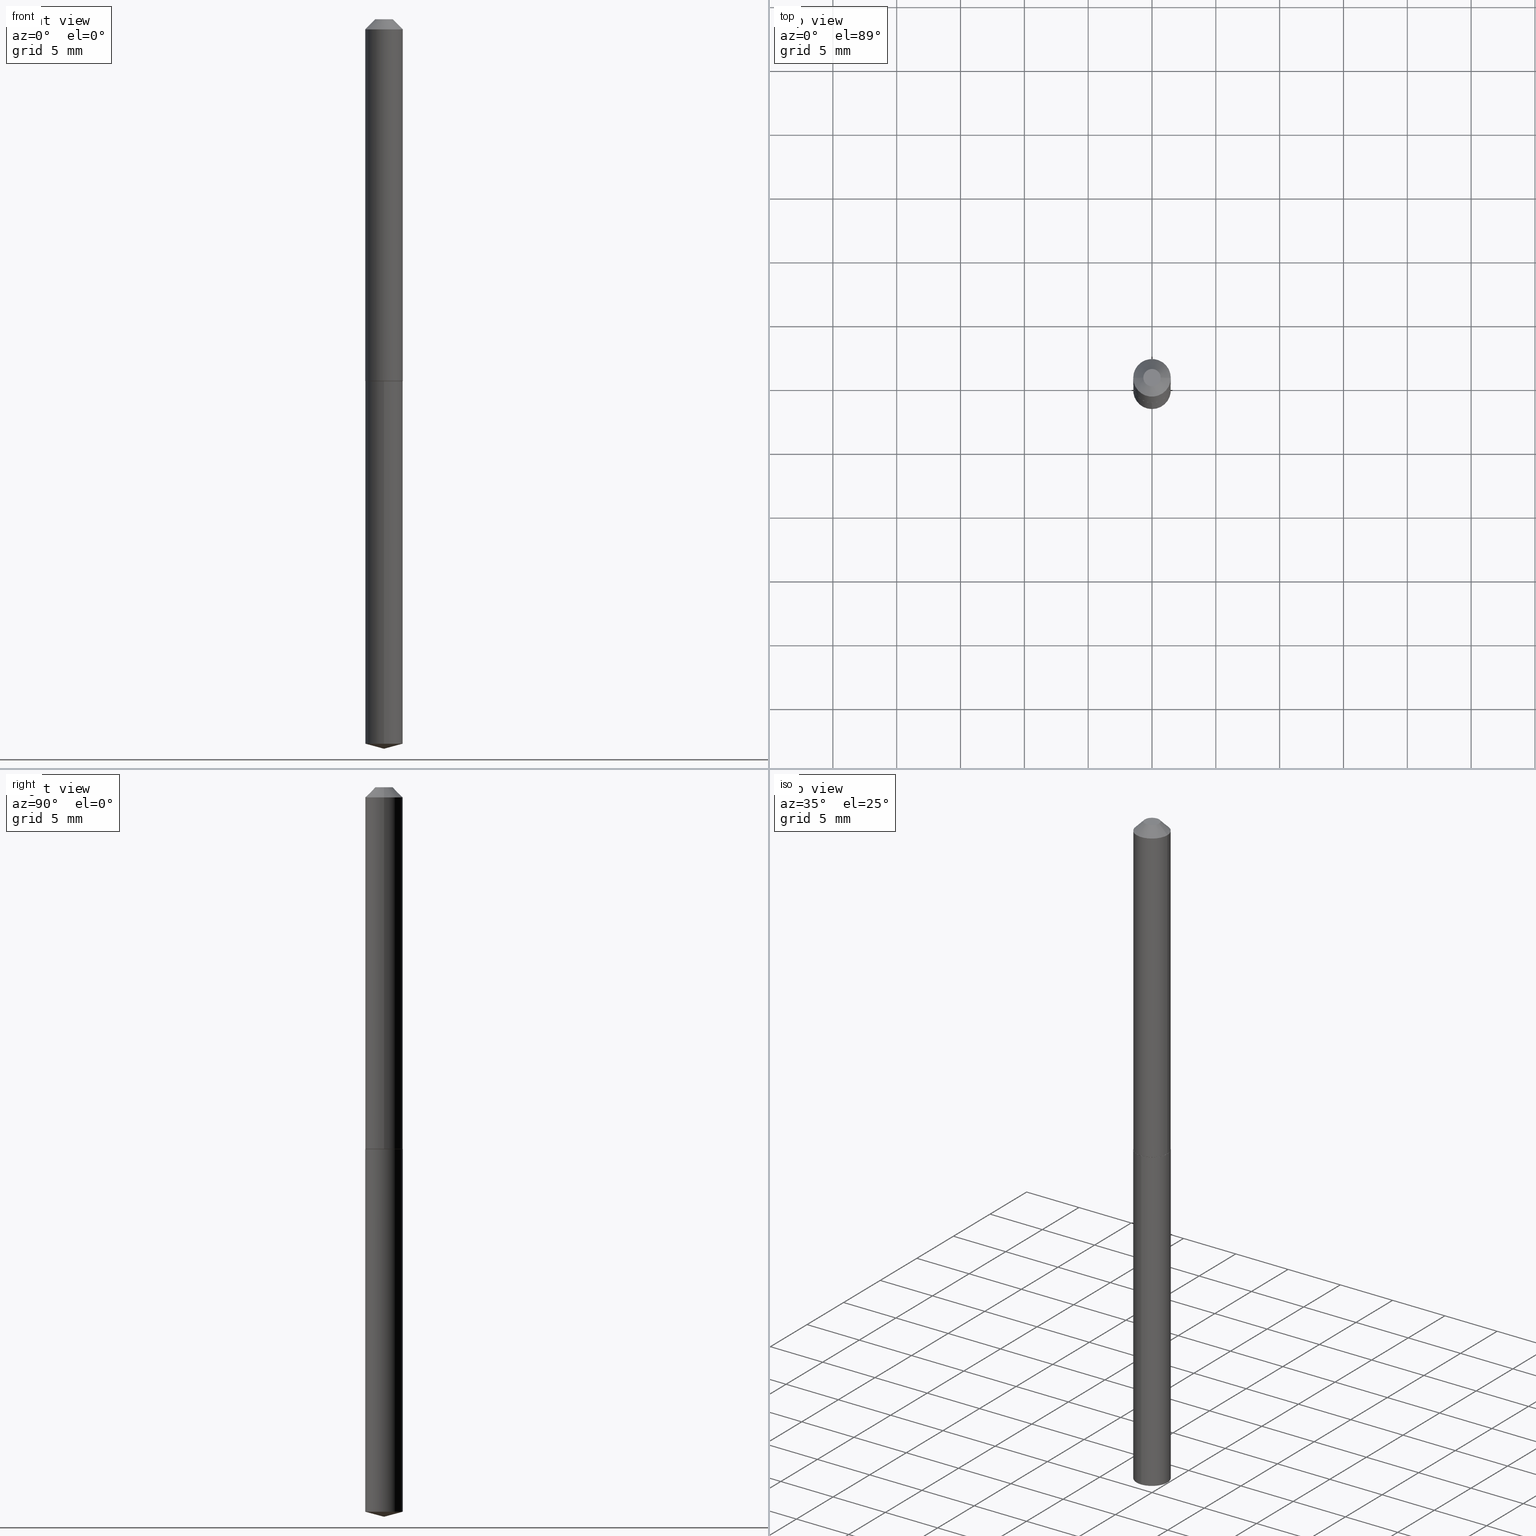
[diagram: canonical four-view strip — front | top / right | iso, engineering-drawing reading convention]
A machine part, canonical four-view strip (front | top / right | iso — engineering-drawing reading convention). The complete STEP part file that produces these views, byte-faithful:
ISO-10303-21;
HEADER;
FILE_DESCRIPTION (( 'STEP AP203' ),
    '1' );
FILE_NAME ('58016.STEP',
    '2024-04-23T00:14:53',
    ( '' ),
    ( '' ),
    'SwSTEP 2.0',
    'SolidWorks 2023',
    '' );
FILE_SCHEMA (( 'CONFIG_CONTROL_DESIGN' ));
ENDSEC;

DATA;
#1 = EDGE_LOOP ( 'NONE', ( #166, #285, #360, #257 ) ) ;
#2 = ORIENTED_EDGE ( 'NONE', *, *, #249, .T. ) ;
#3 = DIRECTION ( 'NONE',  ( -1.000000000000000000, 6.982962677686266711E-15, 0.000000000000000000 ) ) ;
#4 = EDGE_CURVE ( 'NONE', #196, #288, #218, .T. ) ;
#5 = CARTESIAN_POINT ( 'NONE',  ( 5.504240683751685970E-29, -7.853060736610304644E-15, -2.249999999999999556 ) ) ;
#6 = DIRECTION ( 'NONE',  ( 1.000000000000000000, -6.982962677686265922E-15, 0.000000000000000000 ) ) ;
#7 = AXIS2_PLACEMENT_3D ( 'NONE', #123, #229, #16 ) ;
#8 = LOCAL_TIME ( 20, 14, 53.00000000000000000, #151 ) ;
#9 = EDGE_LOOP ( 'NONE', ( #312, #223 ) ) ;
#10 = ADVANCED_FACE ( 'NONE', ( #233 ), #119, .T. ) ;
#11 =( NAMED_UNIT ( * ) SI_UNIT ( $, .STERADIAN. ) SOLID_ANGLE_UNIT ( ) );
#12 = FACE_OUTER_BOUND ( 'NONE', #174, .T. ) ;
#13 = LINE ( 'NONE', #145, #211 ) ;
#14 = ORIENTED_EDGE ( 'NONE', *, *, #99, .T. ) ;
#15 = ADVANCED_FACE ( 'NONE', ( #12 ), #328, .F. ) ;
#16 = DIRECTION ( 'NONE',  ( 1.000000000000000000, -6.982962677686265922E-15, 0.000000000000000000 ) ) ;
#17 =( LENGTH_UNIT ( ) NAMED_UNIT ( * ) SI_UNIT ( $, .METRE. ) );
#18 = VECTOR ( 'NONE', #354, 39.37007874015748143 ) ;
#19 = PRODUCT_RELATED_PRODUCT_CATEGORY ( 'detail', '', ( #113 ) ) ;
#20 =( CONVERSION_BASED_UNIT ( 'INCH', #276 ) LENGTH_UNIT ( ) NAMED_UNIT ( #206 ) );
#21 = CARTESIAN_POINT ( 'NONE',  ( 5.504257523242681981E-29, -7.853060736610304644E-15, -2.249999999999999556 ) ) ;
#22 = AXIS2_PLACEMENT_3D ( 'NONE', #279, #30, #136 ) ;
#23 = AXIS2_PLACEMENT_3D ( 'NONE', #192, #314, #37 ) ;
#24 = PERSON_AND_ORGANIZATION ( #165, #358 ) ;
#25 = DATE_TIME_ROLE ( 'classification_date' ) ;
#26 = CC_DESIGN_PERSON_AND_ORGANIZATION_ASSIGNMENT ( #57, #355, ( #115 ) ) ;
#27 = DIRECTION ( 'NONE',  ( -1.000000000000000000, 6.982962677686266711E-15, 0.000000000000000000 ) ) ;
#28 = CARTESIAN_POINT ( 'NONE',  ( 4.121147867409127080E-16, 0.05799999999999219669, -2.234458946838995264 ) ) ;
#29 = VERTEX_POINT ( 'NONE', #347 ) ;
#30 = DIRECTION ( 'NONE',  ( -2.445468806185136597E-29, 3.491481338843145583E-15, 1.000000000000000000 ) ) ;
#31 = ORIENTED_EDGE ( 'NONE', *, *, #241, .T. ) ;
#32 = CONICAL_SURFACE ( 'NONE', #264, 146.9311341562581390, 1.308996938995752535 ) ;
#33 = DIRECTION ( 'NONE',  ( -2.445468806185136597E-29, 3.491481338843145583E-15, 1.000000000000000000 ) ) ;
#34 = ORIENTED_EDGE ( 'NONE', *, *, #334, .F. ) ;
#35 = EDGE_LOOP ( 'NONE', ( #321, #14, #247, #178 ) ) ;
#36 = CC_DESIGN_PERSON_AND_ORGANIZATION_ASSIGNMENT ( #176, #200, ( #72 ) ) ;
#37 = DIRECTION ( 'NONE',  ( 1.000000000000000000, -6.982962677686265922E-15, 4.876188278482911222E-29 ) ) ;
#38 = VECTOR ( 'NONE', #210, 39.37007874015748143 ) ;
#39 = DIRECTION ( 'NONE',  ( 1.000000000000000000, 0.000000000000000000, 0.000000000000000000 ) ) ;
#40 = EDGE_LOOP ( 'NONE', ( #74, #280, #163, #69 ) ) ;
#41 = COORDINATED_UNIVERSAL_TIME_OFFSET ( 5, 0, .BEHIND. ) ;
#42 = MECHANICAL_CONTEXT ( 'NONE', #369, 'mechanical' ) ;
#43 = ORIENTED_EDGE ( 'NONE', *, *, #380, .F. ) ;
#44 = AXIS2_PLACEMENT_3D ( 'NONE', #343, #292, #76 ) ;
#45 = CARTESIAN_POINT ( 'NONE',  ( -0.02675000000000000294, 2.413486475475311021E-16, 1.836970198706068971E-19 ) ) ;
#46 = CARTESIAN_POINT ( 'NONE',  ( 0.000000000000000000, 0.000000000000000000, 0.000000000000000000 ) ) ;
#47 = EDGE_CURVE ( 'NONE', #196, #29, #13, .T. ) ;
#48 = CARTESIAN_POINT ( 'NONE',  ( 2.729143187702612168E-29, -3.896493174148950582E-15, -1.115999999999999881 ) ) ;
#49 = APPROVAL ( #265, 'UNSPECIFIED' ) ;
#50 = UNCERTAINTY_MEASURE_WITH_UNIT (LENGTH_MEASURE( 1.000000000000000082E-05 ), #20, 'distance_accuracy_value', 'NONE');
#51 = SECURITY_CLASSIFICATION ( '', '', #381 ) ;
#52 = DIRECTION ( 'NONE',  ( -6.982962677686265922E-15, -1.000000000000000000, 2.355041373848502747E-15 ) ) ;
#53 = DATE_AND_TIME ( #379, #81 ) ;
#54 = DATE_AND_TIME ( #90, #326 ) ;
#55 = LINE ( 'NONE', #21, #352 ) ;
#56 = CARTESIAN_POINT ( 'NONE',  ( 4.121147867409129052E-16, 0.05799999999999611022, -1.116000000000000103 ) ) ;
#57 = PERSON_AND_ORGANIZATION ( #165, #358 ) ;
#58 = CARTESIAN_POINT ( 'NONE',  ( 5.465261960279172844E-29, -7.800193636785316454E-15, -2.234458946838994819 ) ) ;
#59 = AXIS2_PLACEMENT_3D ( 'NONE', #307, #190, #27 ) ;
#60 = AXIS2_PLACEMENT_3D ( 'NONE', #104, #258, #332 ) ;
#61 = EDGE_CURVE ( 'NONE', #221, #341, #364, .T. ) ;
#62 = FACE_OUTER_BOUND ( 'NONE', #1, .T. ) ;
#63 = CARTESIAN_POINT ( 'NONE',  ( -4.050118353057761076E-16, -0.05800000000000389566, -1.115999999999999881 ) ) ;
#64 = ORIENTED_EDGE ( 'NONE', *, *, #4, .F. ) ;
#65 = DIRECTION ( 'NONE',  ( 1.000000000000000000, -6.982962677686266711E-15, 4.876176775795935793E-29 ) ) ;
#66 = CARTESIAN_POINT ( 'NONE',  ( 7.642090019328602662E-31, -1.091087918388490267E-16, -0.03125000000000020817 ) ) ;
#67 = ADVANCED_FACE ( 'NONE', ( #226 ), #296, .F. ) ;
#68 = CARTESIAN_POINT ( 'NONE',  ( 2.729143187702612168E-29, -3.896493174148950582E-15, -1.115999999999999881 ) ) ;
#69 = ORIENTED_EDGE ( 'NONE', *, *, #182, .F. ) ;
#70 = FACE_OUTER_BOUND ( 'NONE', #112, .T. ) ;
#71 = EDGE_LOOP ( 'NONE', ( #350, #31, #64, #193 ) ) ;
#72 = PRODUCT_DEFINITION ( 'UNKNOWN', '', #115, #269 ) ;
#73 = CONICAL_SURFACE ( 'NONE', #376, 0.05800000000000014172, 0.7853981633975507526 ) ;
#74 = ORIENTED_EDGE ( 'NONE', *, *, #234, .F. ) ;
#75 = PERSON_AND_ORGANIZATION ( #165, #358 ) ;
#76 = DIRECTION ( 'NONE',  ( -6.982962677686265922E-15, -1.000000000000000000, 2.355041373848502747E-15 ) ) ;
#77 = ADVANCED_FACE ( 'NONE', ( #227 ), #32, .T. ) ;
#78 = APPROVAL_DATE_TIME ( #118, #49 ) ;
#79 = CARTESIAN_POINT ( 'NONE',  ( -9.080889245172304310E-28, 1.295569506819713750E-13, 37.12007874015748143 ) ) ;
#80 = CONICAL_SURFACE ( 'NONE', #59, 0.05800000000000000294, 0.7853981633974449483 ) ;
#81 = LOCAL_TIME ( 20, 14, 53.00000000000000000, #96 ) ;
#82 = CARTESIAN_POINT ( 'NONE',  ( 5.465261960279172844E-29, -7.800193636785316454E-15, -2.234458946838994819 ) ) ;
#83 = DIRECTION ( 'NONE',  ( -2.445468806185136597E-29, 3.491481338843145583E-15, 1.000000000000000000 ) ) ;
#84 = ADVANCED_FACE ( 'NONE', ( #324 ), #152, .T. ) ;
#85 = MANIFOLD_SOLID_BREP ( 'Body-Move/Copy2[2]', #127 ) ;
#86 = CIRCLE ( 'NONE', #348, 0.05750000000000014128 ) ;
#87 = SHAPE_DEFINITION_REPRESENTATION ( #146, #108 ) ;
#88 = CARTESIAN_POINT ( 'NONE',  ( 0.05750000000000014128, -4.298013528115911391E-15, -1.115999999999999881 ) ) ;
#89 = CARTESIAN_POINT ( 'NONE',  ( 2.729143187702612168E-29, -3.896493174148949793E-15, -1.115999999999999881 ) ) ;
#90 = CALENDAR_DATE ( 2024, 22, 4 ) ;
#91 = CARTESIAN_POINT ( 'NONE',  ( 0.05800000000000014172, -4.299759268785332895E-15, -1.115499999999999936 ) ) ;
#92 = ORIENTED_EDGE ( 'NONE', *, *, #228, .F. ) ;
#93 = FACE_OUTER_BOUND ( 'NONE', #368, .T. ) ;
#94 =( NAMED_UNIT ( * ) PLANE_ANGLE_UNIT ( ) SI_UNIT ( $, .RADIAN. ) );
#95 = AXIS2_PLACEMENT_3D ( 'NONE', #361, #214, #65 ) ;
#96 = COORDINATED_UNIVERSAL_TIME_OFFSET ( 5, 0, .BEHIND. ) ;
#97 = DIRECTION ( 'NONE',  ( -2.446329192778527285E-29, 3.490249216271246596E-15, 1.000000000000000000 ) ) ;
#98 = ORIENTED_EDGE ( 'NONE', *, *, #286, .F. ) ;
#99 = EDGE_CURVE ( 'NONE', #221, #109, #378, .T. ) ;
#100 = CARTESIAN_POINT ( 'NONE',  ( -4.492253318864008525E-48, 6.413747168845487133E-34, 1.836970198721037299E-19 ) ) ;
#101 = ORIENTED_EDGE ( 'NONE', *, *, #380, .T. ) ;
#102 = FACE_OUTER_BOUND ( 'NONE', #143, .T. ) ;
#103 = AXIS2_PLACEMENT_3D ( 'NONE', #46, #177, #238 ) ;
#104 = CARTESIAN_POINT ( 'NONE',  ( 2.729143187702612168E-29, -3.896493174148949793E-15, -1.115999999999999881 ) ) ;
#105 = APPROVAL_PERSON_ORGANIZATION ( #268, #309, #120 ) ;
#106 = CARTESIAN_POINT ( 'NONE',  ( 0.02675000000000000294, -3.452679985749932326E-16, 1.836970198739634078E-19 ) ) ;
#107 = ORIENTED_EDGE ( 'NONE', *, *, #331, .T. ) ;
#108 = ADVANCED_BREP_SHAPE_REPRESENTATION ( '58016', ( #344, #85, #197 ), #382 ) ;
#109 = VERTEX_POINT ( 'NONE', #56 ) ;
#110 = ADVANCED_FACE ( 'NONE', ( #156 ), #325, .T. ) ;
#111 = CARTESIAN_POINT ( 'NONE',  ( 2.727920453299519367E-29, -3.894747433479528290E-15, -1.115499999999999936 ) ) ;
#112 = EDGE_LOOP ( 'NONE', ( #271, #339 ) ) ;
#113 = PRODUCT ( '58016', '58016', '', ( #42 ) ) ;
#114 = AXIS2_PLACEMENT_3D ( 'NONE', #125, #129, #52 ) ;
#115 = PRODUCT_DEFINITION_FORMATION_WITH_SPECIFIED_SOURCE ( 'ANY', '', #113, .NOT_KNOWN. ) ;
#116 = DIRECTION ( 'NONE',  ( -6.982962677686265922E-15, -1.000000000000000000, 4.710082747697005495E-15 ) ) ;
#117 = EDGE_CURVE ( 'NONE', #390, #150, #274, .T. ) ;
#118 = DATE_AND_TIME ( #142, #301 ) ;
#119 = CYLINDRICAL_SURFACE ( 'NONE', #44, 0.05800000000000000294 ) ;
#120 = APPROVAL_ROLE ( '' ) ;
#121 = DIRECTION ( 'NONE',  ( 1.000000000000000000, -6.982962677686265922E-15, 4.876176775795935793E-29 ) ) ;
#122 = VECTOR ( 'NONE', #183, 39.37007874015748143 ) ;
#123 = CARTESIAN_POINT ( 'NONE',  ( 2.727920453299519367E-29, -3.894747433479528290E-15, -1.115499999999999936 ) ) ;
#124 = CARTESIAN_POINT ( 'NONE',  ( 4.121147867408853444E-16, 0.05799999999999611022, -1.116000000000000103 ) ) ;
#125 = CARTESIAN_POINT ( 'NONE',  ( 2.729143187702612168E-29, -3.896493174148950582E-15, -1.115999999999999881 ) ) ;
#126 = LINE ( 'NONE', #164, #212 ) ;
#127 = CLOSED_SHELL ( 'NONE', ( #130, #84, #110, #15, #366, #370, #375, #133 ) ) ;
#128 = CIRCLE ( 'NONE', #311, 0.05800000000000000294 ) ;
#129 = DIRECTION ( 'NONE',  ( -2.446329192778527285E-29, 3.490249216271246596E-15, 1.000000000000000000 ) ) ;
#130 = ADVANCED_FACE ( 'NONE', ( #159 ), #80, .T. ) ;
#131 = DIRECTION ( 'NONE',  ( 0.7071067811865451302, -7.319954787623248157E-15, -0.7071067811865499042 ) ) ;
#132 = DIRECTION ( 'NONE',  ( -2.445468806185136597E-29, 3.491481338843145583E-15, 1.000000000000000000 ) ) ;
#133 = ADVANCED_FACE ( 'NONE', ( #70 ), #220, .F. ) ;
#134 = DIRECTION ( 'NONE',  ( -2.446329192778527285E-29, 3.490249216271246596E-15, 1.000000000000000000 ) ) ;
#135 = VERTEX_POINT ( 'NONE', #5 ) ;
#136 = DIRECTION ( 'NONE',  ( 1.000000000000000000, -6.982962677686265922E-15, 0.000000000000000000 ) ) ;
#137 = ORIENTED_EDGE ( 'NONE', *, *, #61, .F. ) ;
#138 = CARTESIAN_POINT ( 'NONE',  ( -9.080889245172304310E-28, 1.295569506819713750E-13, 37.12007874015748143 ) ) ;
#139 = ORIENTED_EDGE ( 'NONE', *, *, #322, .F. ) ;
#140 = AXIS2_PLACEMENT_3D ( 'NONE', #66, #33, #189 ) ;
#141 = ADVANCED_FACE ( 'NONE', ( #102 ), #203, .T. ) ;
#142 = CALENDAR_DATE ( 2024, 22, 4 ) ;
#143 = EDGE_LOOP ( 'NONE', ( #188, #107, #137 ) ) ;
#144 = APPLICATION_PROTOCOL_DEFINITION ( 'international standard', 'config_control_design', 1994, #338 ) ;
#145 = CARTESIAN_POINT ( 'NONE',  ( 0.05800000000000007233, -4.050118353058039642E-16, 2.828182529961646347E-30 ) ) ;
#146 = PRODUCT_DEFINITION_SHAPE ( 'NONE', 'NONE',  #72 ) ;
#147 = DIRECTION ( 'NONE',  ( 0.000000000000000000, 0.000000000000000000, 1.000000000000000000 ) ) ;
#148 = DIRECTION ( 'NONE',  ( 2.446329192778526724E-29, -3.490249216271246596E-15, -1.000000000000000000 ) ) ;
#149 = DATE_AND_TIME ( #293, #388 ) ;
#150 = VERTEX_POINT ( 'NONE', #106 ) ;
#151 = COORDINATED_UNIVERSAL_TIME_OFFSET ( 5, 0, .BEHIND. ) ;
#152 = CYLINDRICAL_SURFACE ( 'NONE', #103, 0.05800000000000007233 ) ;
#153 = AXIS2_PLACEMENT_3D ( 'NONE', #248, #167, #3 ) ;
#154 = DIRECTION ( 'NONE',  ( -6.982962677686265922E-15, -1.000000000000000000, 2.355041373848502747E-15 ) ) ;
#155 = DIRECTION ( 'NONE',  ( 0.7071067811866199593, -2.468850131083015945E-15, 0.7071067811864750752 ) ) ;
#156 = FACE_OUTER_BOUND ( 'NONE', #71, .T. ) ;
#157 = AXIS2_PLACEMENT_3D ( 'NONE', #242, #132, #239 ) ;
#158 = PERSON_AND_ORGANIZATION ( #165, #358 ) ;
#159 = FACE_OUTER_BOUND ( 'NONE', #184, .T. ) ;
#160 = ORIENTED_EDGE ( 'NONE', *, *, #234, .T. ) ;
#161 = AXIS2_PLACEMENT_3D ( 'NONE', #100, #259, #362 ) ;
#162 = AXIS2_PLACEMENT_3D ( 'NONE', #58, #97, #215 ) ;
#163 = ORIENTED_EDGE ( 'NONE', *, *, #47, .T. ) ;
#164 = CARTESIAN_POINT ( 'NONE',  ( -0.05800000000000000294, 2.959030434669544691E-16, -0.03125000000000020817 ) ) ;
#165 = PERSON ( 'UNSPECIFIED', 'UNSPECIFIED', 'UNSPECIFIED', ('UNSPECIFIED'), ('UNSPECIFIED'), ('UNSPECIFIED') ) ;
#166 = ORIENTED_EDGE ( 'NONE', *, *, #316, .F. ) ;
#167 = DIRECTION ( 'NONE',  ( 2.445468806185136597E-29, -3.491481338843145583E-15, -1.000000000000000000 ) ) ;
#168 = DIRECTION ( 'NONE',  ( -1.000000000000000000, 6.982962677686265922E-15, -4.876176775795935793E-29 ) ) ;
#169 = APPROVAL ( #205, 'UNSPECIFIED' ) ;
#170 = EDGE_LOOP ( 'NONE', ( #291, #101, #273, #340 ) ) ;
#171 = VERTEX_POINT ( 'NONE', #323 ) ;
#172 = EDGE_CURVE ( 'NONE', #288, #196, #317, .T. ) ;
#173 = ORIENTED_EDGE ( 'NONE', *, *, #61, .T. ) ;
#174 = EDGE_LOOP ( 'NONE', ( #139, #43 ) ) ;
#175 = VECTOR ( 'NONE', #246, 39.37007874015748143 ) ;
#176 = PERSON_AND_ORGANIZATION ( #165, #358 ) ;
#177 = DIRECTION ( 'NONE',  ( -2.445468806185136597E-29, 3.491481338843145583E-15, 1.000000000000000000 ) ) ;
#178 = ORIENTED_EDGE ( 'NONE', *, *, #198, .F. ) ;
#179 = EDGE_CURVE ( 'NONE', #341, #221, #297, .T. ) ;
#180 = APPROVAL_PERSON_ORGANIZATION ( #75, #49, #262 ) ;
#181 = CARTESIAN_POINT ( 'NONE',  ( 5.502320300875237439E-29, -7.855810834190783324E-15, -2.249999999999999556 ) ) ;
#182 = EDGE_CURVE ( 'NONE', #351, #29, #219, .T. ) ;
#183 = DIRECTION ( 'NONE',  ( -0.7071067811866199593, 7.493145998870616062E-15, 0.7071067811864750752 ) ) ;
#184 = EDGE_LOOP ( 'NONE', ( #98, #217, #2, #92 ) ) ;
#185 = VECTOR ( 'NONE', #155, 39.37007874015748143 ) ;
#186 = FACE_OUTER_BOUND ( 'NONE', #170, .T. ) ;
#187 = CARTESIAN_POINT ( 'NONE',  ( -0.05750000000000014128, -3.485281873912780623E-15, -1.115999999999999881 ) ) ;
#188 = ORIENTED_EDGE ( 'NONE', *, *, #275, .F. ) ;
#189 = DIRECTION ( 'NONE',  ( 1.000000000000000000, -6.982962677686266711E-15, 0.000000000000000000 ) ) ;
#190 = DIRECTION ( 'NONE',  ( 2.445468806185136597E-29, -3.491481338843145583E-15, -1.000000000000000000 ) ) ;
#191 = CIRCLE ( 'NONE', #23, 0.02675000000000000294 ) ;
#192 = CARTESIAN_POINT ( 'NONE',  ( -4.492253318864008525E-48, 6.413747168845487133E-34, 1.836970198721037299E-19 ) ) ;
#193 = ORIENTED_EDGE ( 'NONE', *, *, #195, .F. ) ;
#194 = ORIENTED_EDGE ( 'NONE', *, *, #331, .F. ) ;
#195 = EDGE_CURVE ( 'NONE', #251, #196, #356, .T. ) ;
#196 = VERTEX_POINT ( 'NONE', #335 ) ;
#197 = AXIS2_PLACEMENT_3D ( 'NONE', #318, #147, #39 ) ;
#198 = EDGE_CURVE ( 'NONE', #341, #171, #306, .T. ) ;
#199 = APPLICATION_PROTOCOL_DEFINITION ( 'international standard', 'config_control_design', 1994, #369 ) ;
#200 = PERSON_AND_ORGANIZATION_ROLE ( 'creator' ) ;
#201 = DIRECTION ( 'NONE',  ( -2.446329192778527285E-29, 3.490249216271246596E-15, 1.000000000000000000 ) ) ;
#202 = AXIS2_PLACEMENT_3D ( 'NONE', #48, #148, #266 ) ;
#203 = CONICAL_SURFACE ( 'NONE', #290, 146.9311341562581390, 1.308996938995752535 ) ;
#204 = DIRECTION ( 'NONE',  ( -2.446329192778527285E-29, 3.490249216271246596E-15, 1.000000000000000000 ) ) ;
#205 = APPROVAL_STATUS ( 'not_yet_approved' ) ;
#206 = DIMENSIONAL_EXPONENTS ( 1.000000000000000000, 0.000000000000000000, 0.000000000000000000, 0.000000000000000000, 0.000000000000000000, 0.000000000000000000, 0.000000000000000000 ) ;
#207 = PERSON_AND_ORGANIZATION_ROLE ( 'design_supplier' ) ;
#208 = VECTOR ( 'NONE', #235, 39.37007874015748854 ) ;
#209 = CC_DESIGN_DATE_AND_TIME_ASSIGNMENT ( #149, #327, ( #72 ) ) ;
#210 = DIRECTION ( 'NONE',  ( -2.446329192778527285E-29, 3.490249216271246596E-15, 1.000000000000000000 ) ) ;
#211 = VECTOR ( 'NONE', #263, 39.37007874015748143 ) ;
#212 = VECTOR ( 'NONE', #308, 39.37007874015748143 ) ;
#213 = VERTEX_POINT ( 'NONE', #187 ) ;
#214 = DIRECTION ( 'NONE',  ( -2.445468806185136597E-29, 3.491481338843145583E-15, 1.000000000000000000 ) ) ;
#215 = DIRECTION ( 'NONE',  ( -6.982962677686265922E-15, -1.000000000000000000, 4.710082747697005495E-15 ) ) ;
#216 = DIRECTION ( 'NONE',  ( 2.438088387897960049E-29, -3.491481338843145188E-15, -1.000000000000000000 ) ) ;
#217 = ORIENTED_EDGE ( 'NONE', *, *, #316, .T. ) ;
#218 = CIRCLE ( 'NONE', #7, 0.05800000000000014172 ) ;
#219 = CIRCLE ( 'NONE', #157, 0.05800000000000000294 ) ;
#220 = PLANE ( 'NONE',  #255 ) ;
#221 = VERTEX_POINT ( 'NONE', #28 ) ;
#222 = APPROVAL_DATE_TIME ( #232, #309 ) ;
#223 = ORIENTED_EDGE ( 'NONE', *, *, #334, .T. ) ;
#224 = AXIS2_PLACEMENT_3D ( 'NONE', #345, #346, #121 ) ;
#225 = CC_DESIGN_APPROVAL ( #309, ( #115 ) ) ;
#226 = FACE_OUTER_BOUND ( 'NONE', #9, .T. ) ;
#227 = FACE_OUTER_BOUND ( 'NONE', #283, .T. ) ;
#228 = EDGE_CURVE ( 'NONE', #390, #351, #126, .T. ) ;
#229 = DIRECTION ( 'NONE',  ( -2.445468806185136597E-29, 3.491481338843145583E-15, 1.000000000000000000 ) ) ;
#230 = AXIS2_PLACEMENT_3D ( 'NONE', #82, #371, #116 ) ;
#231 = CC_DESIGN_APPROVAL ( #169, ( #51 ) ) ;
#232 = DATE_AND_TIME ( #330, #8 ) ;
#233 = FACE_OUTER_BOUND ( 'NONE', #35, .T. ) ;
#234 = EDGE_CURVE ( 'NONE', #288, #351, #282, .T. ) ;
#235 = DIRECTION ( 'NONE',  ( -6.745023994389847810E-15, -0.9659258262890687563, 0.2588190451025189631 ) ) ;
#236 = AXIS2_PLACEMENT_3D ( 'NONE', #270, #204, #154 ) ;
#237 = LINE ( 'NONE', #336, #122 ) ;
#238 = DIRECTION ( 'NONE',  ( 1.000000000000000000, -6.982962677686266711E-15, 4.876176775795935793E-29 ) ) ;
#239 = DIRECTION ( 'NONE',  ( 1.000000000000000000, -6.982962677686266711E-15, 0.000000000000000000 ) ) ;
#240 = DIRECTION ( 'NONE',  ( -2.445468806185136597E-29, 3.491481338843145583E-15, 1.000000000000000000 ) ) ;
#241 = EDGE_CURVE ( 'NONE', #213, #288, #237, .T. ) ;
#242 = CARTESIAN_POINT ( 'NONE',  ( 7.642090019328602662E-31, -1.091087918388490267E-16, -0.03125000000000020817 ) ) ;
#243 = VECTOR ( 'NONE', #131, 39.37007874015748143 ) ;
#244 = ORIENTED_EDGE ( 'NONE', *, *, #47, .F. ) ;
#245 = FACE_OUTER_BOUND ( 'NONE', #40, .T. ) ;
#246 = DIRECTION ( 'NONE',  ( -2.445468806185136877E-29, 3.491481338843145188E-15, 1.000000000000000000 ) ) ;
#247 = ORIENTED_EDGE ( 'NONE', *, *, #303, .F. ) ;
#248 = CARTESIAN_POINT ( 'NONE',  ( 7.642090019328602662E-31, -1.091087918388490267E-16, -0.03125000000000020817 ) ) ;
#249 = EDGE_CURVE ( 'NONE', #29, #351, #365, .T. ) ;
#250 = DIRECTION ( 'NONE',  ( 6.863315791527702148E-15, 0.9659258262890705327, 0.2588190451025121908 ) ) ;
#251 = VERTEX_POINT ( 'NONE', #88 ) ;
#252 = CARTESIAN_POINT ( 'NONE',  ( -2.246126659432004262E-48, 3.206873584422743567E-34, 9.184850993605186494E-20 ) ) ;
#253 = ORIENTED_EDGE ( 'NONE', *, *, #4, .T. ) ;
#254 = DIRECTION ( 'NONE',  ( -2.446329192778527285E-29, 3.490249216271246596E-15, 1.000000000000000000 ) ) ;
#255 = AXIS2_PLACEMENT_3D ( 'NONE', #252, #216, #168 ) ;
#256 = CIRCLE ( 'NONE', #60, 0.05750000000000014128 ) ;
#257 = ORIENTED_EDGE ( 'NONE', *, *, #182, .T. ) ;
#258 = DIRECTION ( 'NONE',  ( -2.445468806185136597E-29, 3.491481338843145583E-15, 1.000000000000000000 ) ) ;
#259 = DIRECTION ( 'NONE',  ( -2.445468806185136597E-29, 3.491481338843145583E-15, 1.000000000000000000 ) ) ;
#260 = CC_DESIGN_PERSON_AND_ORGANIZATION_ASSIGNMENT ( #295, #320, ( #113 ) ) ;
#261 = ORIENTED_EDGE ( 'NONE', *, *, #179, .F. ) ;
#262 = APPROVAL_ROLE ( '' ) ;
#263 = DIRECTION ( 'NONE',  ( -2.445468806185136877E-29, 3.491481338843145188E-15, 1.000000000000000000 ) ) ;
#264 = AXIS2_PLACEMENT_3D ( 'NONE', #79, #201, #299 ) ;
#265 = APPROVAL_STATUS ( 'not_yet_approved' ) ;
#266 = DIRECTION ( 'NONE',  ( 6.982962677686265922E-15, 1.000000000000000000, -3.490249216271246596E-15 ) ) ;
#267 = CC_DESIGN_DATE_AND_TIME_ASSIGNMENT ( #54, #25, ( #51 ) ) ;
#268 = PERSON_AND_ORGANIZATION ( #165, #358 ) ;
#269 = DESIGN_CONTEXT ( 'detailed design', #338, 'design' ) ;
#270 = CARTESIAN_POINT ( 'NONE',  ( 2.729143187702612168E-29, -3.896493174148950582E-15, -1.115999999999999881 ) ) ;
#271 = ORIENTED_EDGE ( 'NONE', *, *, #117, .T. ) ;
#272 = CARTESIAN_POINT ( 'NONE',  ( -0.05800000000000014172, -3.482632646738669816E-15, -1.115499999999999936 ) ) ;
#273 = ORIENTED_EDGE ( 'NONE', *, *, #195, .T. ) ;
#274 = CIRCLE ( 'NONE', #161, 0.02675000000000000294 ) ;
#275 = EDGE_CURVE ( 'NONE', #135, #221, #55, .T. ) ;
#276 = LENGTH_MEASURE_WITH_UNIT ( LENGTH_MEASURE( 0.02539999999999999897 ), #17 );
#277 = PERSON_AND_ORGANIZATION_ROLE ( 'classification_officer' ) ;
#278 = AXIS2_PLACEMENT_3D ( 'NONE', #111, #83, #384 ) ;
#279 = CARTESIAN_POINT ( 'NONE',  ( 2.727920453299519367E-29, -3.894747433479528290E-15, -1.115499999999999936 ) ) ;
#280 = ORIENTED_EDGE ( 'NONE', *, *, #172, .T. ) ;
#281 = DIRECTION ( 'NONE',  ( -2.445468806185136597E-29, 3.491481338843145583E-15, 1.000000000000000000 ) ) ;
#282 = LINE ( 'NONE', #389, #175 ) ;
#283 = EDGE_LOOP ( 'NONE', ( #194, #337, #261 ) ) ;
#284 = APPROVAL_PERSON_ORGANIZATION ( #353, #169, #357 ) ;
#285 = ORIENTED_EDGE ( 'NONE', *, *, #117, .F. ) ;
#286 = EDGE_CURVE ( 'NONE', #150, #390, #191, .T. ) ;
#287 = CARTESIAN_POINT ( 'NONE',  ( -0.05800000000000000294, -1.589813325918329433E-15, -0.03125000000000020817 ) ) ;
#288 = VERTEX_POINT ( 'NONE', #272 ) ;
#289 = CARTESIAN_POINT ( 'NONE',  ( 2.727920453299519367E-29, -3.894747433479528290E-15, -1.115499999999999936 ) ) ;
#290 = AXIS2_PLACEMENT_3D ( 'NONE', #138, #254, #367 ) ;
#291 = ORIENTED_EDGE ( 'NONE', *, *, #241, .F. ) ;
#292 = DIRECTION ( 'NONE',  ( -2.446329192778527285E-29, 3.490249216271246596E-15, 1.000000000000000000 ) ) ;
#293 = CALENDAR_DATE ( 2024, 22, 4 ) ;
#294 = ORIENTED_EDGE ( 'NONE', *, *, #198, .T. ) ;
#295 = PERSON_AND_ORGANIZATION ( #165, #358 ) ;
#296 = PLANE ( 'NONE',  #202 ) ;
#297 = CIRCLE ( 'NONE', #162, 0.05800000000000000294 ) ;
#298 = APPROVAL_STATUS ( 'not_yet_approved' ) ;
#299 = DIRECTION ( 'NONE',  ( -6.982962677686267499E-15, -1.000000000000000000, 3.510303681827565886E-15 ) ) ;
#300 = CC_DESIGN_PERSON_AND_ORGANIZATION_ASSIGNMENT ( #24, #207, ( #115 ) ) ;
#301 = LOCAL_TIME ( 20, 14, 53.00000000000000000, #372 ) ;
#302 = COORDINATED_UNIVERSAL_TIME_OFFSET ( 5, 0, .BEHIND. ) ;
#303 = EDGE_CURVE ( 'NONE', #171, #109, #333, .T. ) ;
#304 = APPROVAL_DATE_TIME ( #53, #169 ) ;
#305 = CYLINDRICAL_SURFACE ( 'NONE', #95, 0.05800000000000007233 ) ;
#306 = LINE ( 'NONE', #63, #18 ) ;
#307 = CARTESIAN_POINT ( 'NONE',  ( 7.642090019328602662E-31, -1.091087918388490267E-16, -0.03125000000000020817 ) ) ;
#308 = DIRECTION ( 'NONE',  ( -0.7071067811865451302, 2.468850131082231817E-15, -0.7071067811865499042 ) ) ;
#309 = APPROVAL ( #298, 'UNSPECIFIED' ) ;
#310 = EDGE_LOOP ( 'NONE', ( #253, #160, #373, #244 ) ) ;
#311 = AXIS2_PLACEMENT_3D ( 'NONE', #68, #134, #313 ) ;
#312 = ORIENTED_EDGE ( 'NONE', *, *, #303, .T. ) ;
#313 = DIRECTION ( 'NONE',  ( -6.982962677686265922E-15, -1.000000000000000000, 2.355041373848502747E-15 ) ) ;
#314 = DIRECTION ( 'NONE',  ( -2.445468806185136597E-29, 3.491481338843145583E-15, 1.000000000000000000 ) ) ;
#315 = ORIENTED_EDGE ( 'NONE', *, *, #99, .F. ) ;
#316 = EDGE_CURVE ( 'NONE', #150, #29, #386, .T. ) ;
#317 = CIRCLE ( 'NONE', #278, 0.05800000000000014172 ) ;
#318 = CARTESIAN_POINT ( 'NONE',  ( 0.000000000000000000, 0.000000000000000000, 0.000000000000000000 ) ) ;
#319 = CONICAL_SURFACE ( 'NONE', #153, 0.05800000000000000294, 0.7853981633974449483 ) ;
#320 = PERSON_AND_ORGANIZATION_ROLE ( 'design_owner' ) ;
#321 = ORIENTED_EDGE ( 'NONE', *, *, #179, .T. ) ;
#322 = EDGE_CURVE ( 'NONE', #251, #213, #86, .T. ) ;
#323 = CARTESIAN_POINT ( 'NONE',  ( -4.050118353057761076E-16, -0.05800000000000389566, -1.115999999999999881 ) ) ;
#324 = FACE_OUTER_BOUND ( 'NONE', #310, .T. ) ;
#325 = CONICAL_SURFACE ( 'NONE', #22, 0.05800000000000014172, 0.7853981633975507526 ) ;
#326 = LOCAL_TIME ( 20, 14, 53.00000000000000000, #302 ) ;
#327 = DATE_TIME_ROLE ( 'creation_date' ) ;
#328 = PLANE ( 'NONE',  #224 ) ;
#329 = ADVANCED_FACE ( 'NONE', ( #93 ), #374, .T. ) ;
#330 = CALENDAR_DATE ( 2024, 22, 4 ) ;
#331 = EDGE_CURVE ( 'NONE', #135, #341, #377, .T. ) ;
#332 = DIRECTION ( 'NONE',  ( 1.000000000000000000, -6.982962677686264344E-15, 0.000000000000000000 ) ) ;
#333 = CIRCLE ( 'NONE', #236, 0.05800000000000000294 ) ;
#334 = EDGE_CURVE ( 'NONE', #109, #171, #128, .T. ) ;
#335 = CARTESIAN_POINT ( 'NONE',  ( 0.05800000000000014172, -4.299759268785332895E-15, -1.115499999999999936 ) ) ;
#336 = CARTESIAN_POINT ( 'NONE',  ( -0.05800000000000014172, -3.482632646738669816E-15, -1.115499999999999936 ) ) ;
#337 = ORIENTED_EDGE ( 'NONE', *, *, #275, .T. ) ;
#338 = APPLICATION_CONTEXT ( 'configuration controlled 3d designs of mechanical parts and assemblies' ) ;
#339 = ORIENTED_EDGE ( 'NONE', *, *, #286, .T. ) ;
#340 = ORIENTED_EDGE ( 'NONE', *, *, #172, .F. ) ;
#341 = VERTEX_POINT ( 'NONE', #363 ) ;
#342 = CC_DESIGN_APPROVAL ( #49, ( #72 ) ) ;
#343 = CARTESIAN_POINT ( 'NONE',  ( 2.729143187702612168E-29, -3.896493174148950582E-15, -1.115999999999999881 ) ) ;
#344 = MANIFOLD_SOLID_BREP ( 'Body-Move/Copy2[1]', #387 ) ;
#345 = CARTESIAN_POINT ( 'NONE',  ( 2.729143187702612168E-29, -3.896493174148949793E-15, -1.115999999999999881 ) ) ;
#346 = DIRECTION ( 'NONE',  ( -2.438088387897960049E-29, 3.491481338843145188E-15, 1.000000000000000000 ) ) ;
#347 = CARTESIAN_POINT ( 'NONE',  ( 0.05800000000000000294, -5.141206271446525225E-16, -0.03125000000000020817 ) ) ;
#348 = AXIS2_PLACEMENT_3D ( 'NONE', #89, #240, #359 ) ;
#349 = CC_DESIGN_SECURITY_CLASSIFICATION ( #51, ( #115 ) ) ;
#350 = ORIENTED_EDGE ( 'NONE', *, *, #322, .T. ) ;
#351 = VERTEX_POINT ( 'NONE', #287 ) ;
#352 = VECTOR ( 'NONE', #250, 39.37007874015748854 ) ;
#353 = PERSON_AND_ORGANIZATION ( #165, #358 ) ;
#354 = DIRECTION ( 'NONE',  ( -2.446329192778527285E-29, 3.490249216271246596E-15, 1.000000000000000000 ) ) ;
#355 = PERSON_AND_ORGANIZATION_ROLE ( 'creator' ) ;
#356 = LINE ( 'NONE', #91, #185 ) ;
#357 = APPROVAL_ROLE ( '' ) ;
#358 = ORGANIZATION ( 'UNSPECIFIED', 'UNSPECIFIED', '' ) ;
#359 = DIRECTION ( 'NONE',  ( 1.000000000000000000, -6.982962677686264344E-15, 0.000000000000000000 ) ) ;
#360 = ORIENTED_EDGE ( 'NONE', *, *, #228, .T. ) ;
#361 = CARTESIAN_POINT ( 'NONE',  ( 0.000000000000000000, 0.000000000000000000, 0.000000000000000000 ) ) ;
#362 = DIRECTION ( 'NONE',  ( 1.000000000000000000, -6.982962677686265922E-15, 4.876188278482911222E-29 ) ) ;
#363 = CARTESIAN_POINT ( 'NONE',  ( -4.050118353057487440E-16, -0.05800000000000780226, -2.234458946838994819 ) ) ;
#364 = CIRCLE ( 'NONE', #230, 0.05800000000000000294 ) ;
#365 = CIRCLE ( 'NONE', #140, 0.05800000000000000294 ) ;
#366 = ADVANCED_FACE ( 'NONE', ( #186 ), #73, .T. ) ;
#367 = DIRECTION ( 'NONE',  ( -6.982962677686267499E-15, -1.000000000000000000, 3.510303681827565886E-15 ) ) ;
#368 = EDGE_LOOP ( 'NONE', ( #315, #173, #294, #34 ) ) ;
#369 = APPLICATION_CONTEXT ( 'configuration controlled 3d designs of mechanical parts and assemblies' ) ;
#370 = ADVANCED_FACE ( 'NONE', ( #245 ), #305, .T. ) ;
#371 = DIRECTION ( 'NONE',  ( -2.446329192778527285E-29, 3.490249216271246596E-15, 1.000000000000000000 ) ) ;
#372 = COORDINATED_UNIVERSAL_TIME_OFFSET ( 5, 0, .BEHIND. ) ;
#373 = ORIENTED_EDGE ( 'NONE', *, *, #249, .F. ) ;
#374 = CYLINDRICAL_SURFACE ( 'NONE', #114, 0.05800000000000000294 ) ;
#375 = ADVANCED_FACE ( 'NONE', ( #62 ), #319, .T. ) ;
#376 = AXIS2_PLACEMENT_3D ( 'NONE', #289, #281, #6 ) ;
#377 = LINE ( 'NONE', #181, #208 ) ;
#378 = LINE ( 'NONE', #124, #38 ) ;
#379 = CALENDAR_DATE ( 2024, 22, 4 ) ;
#380 = EDGE_CURVE ( 'NONE', #213, #251, #256, .T. ) ;
#381 = SECURITY_CLASSIFICATION_LEVEL ( 'unclassified' ) ;
#382 =( GEOMETRIC_REPRESENTATION_CONTEXT ( 3 ) GLOBAL_UNCERTAINTY_ASSIGNED_CONTEXT ( ( #50 ) ) GLOBAL_UNIT_ASSIGNED_CONTEXT ( ( #20, #94, #11 ) ) REPRESENTATION_CONTEXT ( 'NONE', 'WORKASPACE' ) );
#383 = CARTESIAN_POINT ( 'NONE',  ( 0.05800000000000000294, -5.070176757095978650E-16, -0.03125000000000020817 ) ) ;
#384 = DIRECTION ( 'NONE',  ( 1.000000000000000000, -6.982962677686265922E-15, 0.000000000000000000 ) ) ;
#385 = CC_DESIGN_PERSON_AND_ORGANIZATION_ASSIGNMENT ( #158, #277, ( #51 ) ) ;
#386 = LINE ( 'NONE', #383, #243 ) ;
#387 = CLOSED_SHELL ( 'NONE', ( #10, #77, #141, #329, #67 ) ) ;
#388 = LOCAL_TIME ( 20, 14, 53.00000000000000000, #41 ) ;
#389 = CARTESIAN_POINT ( 'NONE',  ( -0.05800000000000007233, 4.121147867408586217E-16, -2.852982352347848756E-30 ) ) ;
#390 = VERTEX_POINT ( 'NONE', #45 ) ;
ENDSEC;
END-ISO-10303-21;
